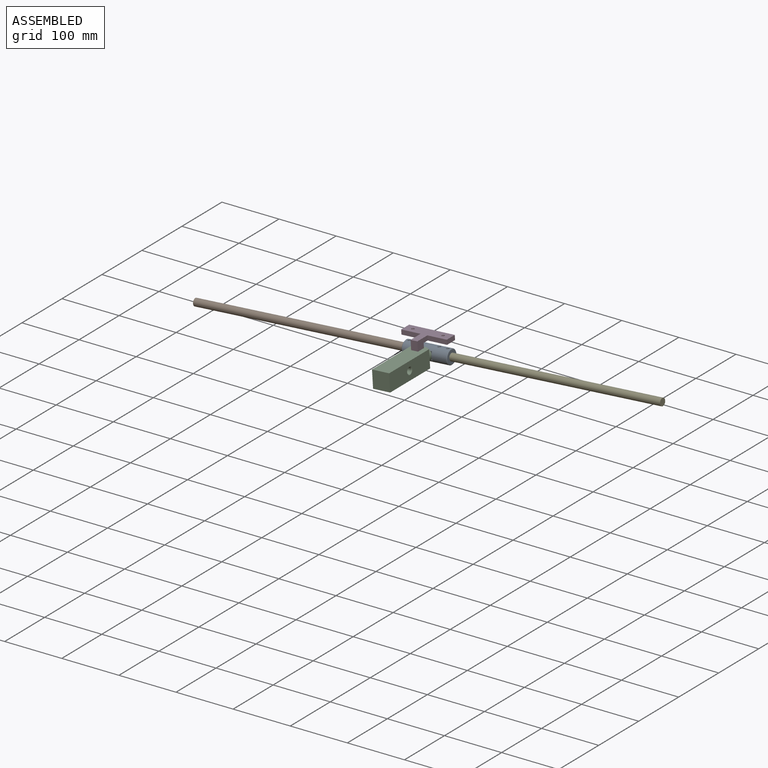
[diagram: assembled view]
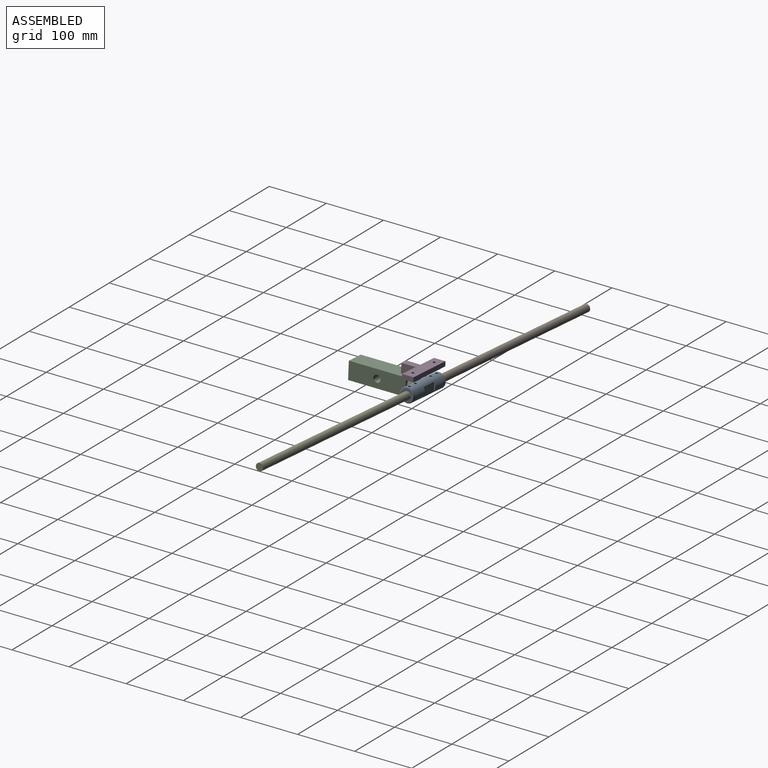
[diagram: assembled view, second angle]
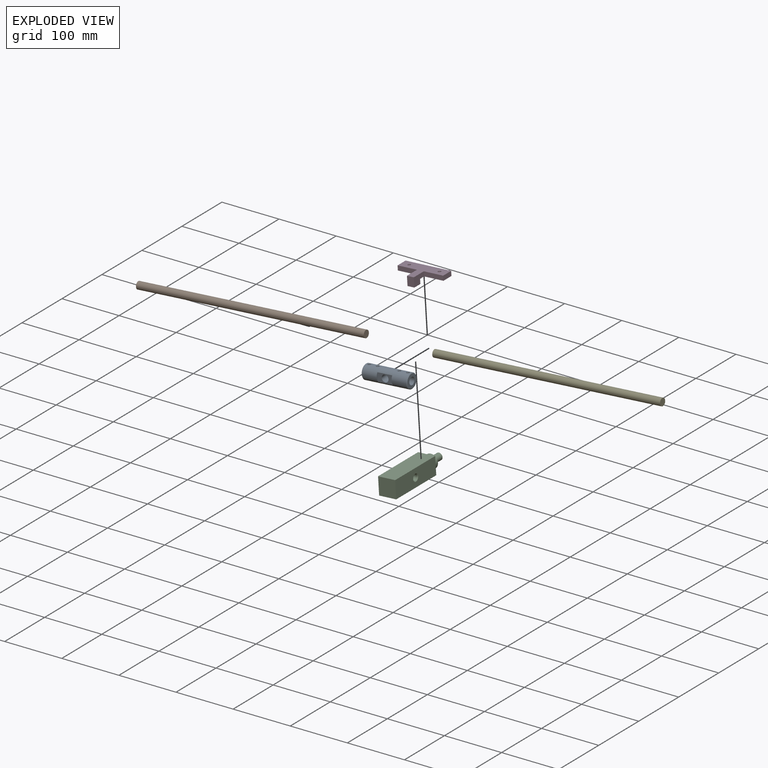
[diagram: exploded view]
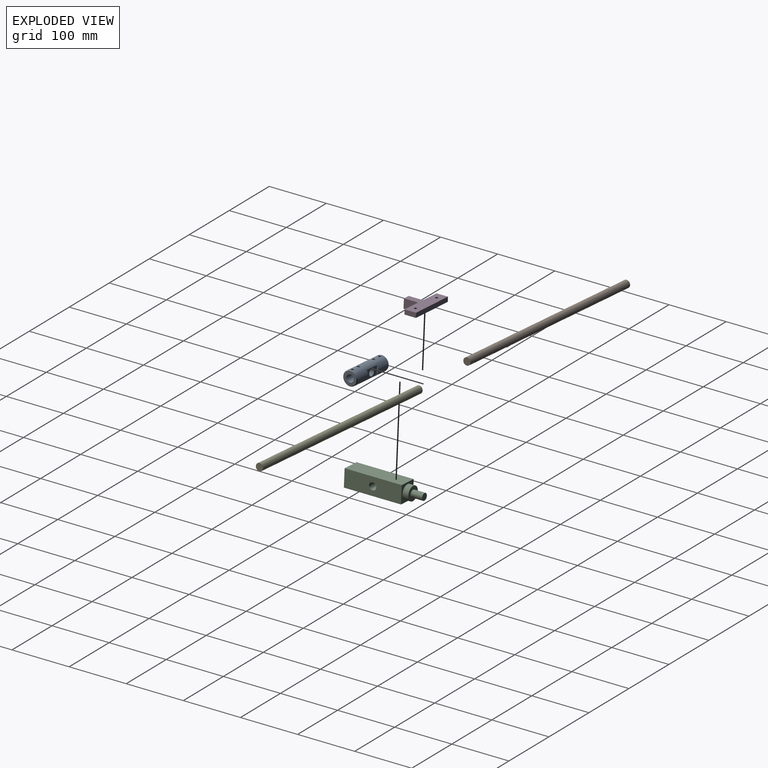
[diagram: exploded view, second angle]
ASSEMBLY  parts=5 mates=4
PART A: 24 faces, bbox 80x25x25 mm
  f0: cylinder r=12.5mm len=78mm, axis (-1,0,0), area 5170.1mm2, adj f7,f8,f9,f10,f11,f12,f14,f16
  f1: cylinder r=6.35mm len=30mm, axis (1,0,0), area 1156.9mm2, adj f3,f5,f19,f21
  f2: cylinder r=6.35mm len=30mm, axis (-1,0,0), area 1156.9mm2, adj f4,f6,f15,f17
  f3: plane 23x23mm, normal (1,0,0), area 288.8mm2, adj f1,f22
  f4: plane 23x23mm, normal (-1,0,0), area 288.8mm2, adj f2,f23
  f5: plane 12.7x12.7mm, normal (1,0,0), area 126.7mm2, adj f1
  f6: plane 12.7x12.7mm, normal (-1,0,0), area 126.7mm2, adj f2
  f7: plane 26x15mm, normal (0,-1,0), area 276.9mm2, adj f0,f8,f9,f13
  f8: plane 15x2.5mm, normal (1,0,0), area 25.5mm2, adj f0,f7
  f9: plane 15x2.5mm, normal (-1,0,0), area 25.5mm2, adj f0,f7
  f10: plane 15x2.5mm, normal (1,0,0), area 25.5mm2, adj f0,f11
  f11: plane 26x15mm, normal (0,1,0), area 276.9mm2, adj f0,f10,f12,f13
  f12: plane 15x2.5mm, normal (-1,0,0), area 25.5mm2, adj f0,f11
  f13: cylinder r=6mm len=20mm, axis (0,-1,0), area 754mm2, adj f7,f11
  f14: cone r=2.5mm half-angle=45deg, axis (0,0,1), area 14.2mm2, adj f0,f15
  f15: cylinder r=2.5mm len=5.91mm, axis (0,0,1), area 88.8mm2, adj f2,f14
  f16: cone r=2.5mm half-angle=45deg, axis (0,0,1), area 14.2mm2, adj f0,f17
  f17: cylinder r=2.5mm len=5.91mm, axis (0,0,1), area 88.8mm2, adj f2,f16
  f18: cone r=2.5mm half-angle=45deg, axis (0,0,1), area 14.2mm2, adj f0,f19
  f19: cylinder r=2.5mm len=5.91mm, axis (0,0,1), area 88.8mm2, adj f1,f18
  f20: cone r=2.5mm half-angle=45deg, axis (0,0,1), area 14.2mm2, adj f0,f21
  f21: cylinder r=2.5mm len=5.91mm, axis (0,0,1), area 88.8mm2, adj f1,f20
  f22: cone r=11.5mm half-angle=45deg, axis (-1,0,0), area 106.6mm2, adj f0,f3
  f23: cone r=12.5mm half-angle=45deg, axis (1,0,0), area 106.6mm2, adj f0,f4
PART B: 3 faces, bbox 400x12.7x12.7 mm
  f0: cylinder r=6.35mm len=400mm, axis (1,0,0), area 15959.3mm2, adj f1,f2
  f1: plane 12.7x12.7mm, normal (-1,0,0), area 126.7mm2, adj f0
  f2: plane 12.7x12.7mm, normal (1,0,0), area 126.7mm2, adj f0
PART C: 13 faces, bbox 30x130x30 mm
  f0: plane 24x24mm, normal (0,1,0), area 340.2mm2, adj f1,f3
  f1: cylinder r=5.98mm len=20mm, axis (0,-1,0), area 750.8mm2, adj f0,f2
  f2: plane 11.95x11.95mm, normal (0,1,0), area 112.2mm2, adj f1
  f3: cylinder r=12mm len=24mm, axis (0,1,0), area 754mm2, adj f0,f4
  f4: plane 30x30mm, normal (0,1,0), area 447.6mm2, adj f3,f6,f7,f8,f9
  f5: plane 30x30mm, normal (0,-1,0), area 900mm2, adj f6,f7,f8,f9
  f6: plane 100x30mm, normal (-1,0,0), area 3000mm2, adj f4,f5,f7,f9
  f7: plane 100x30mm, normal (0,0,1), area 3000mm2, adj f4,f5,f6,f8
  f8: plane 100x30mm, normal (1,0,0), area 2877.3mm2, adj f4,f5,f7,f9,f11
  f9: plane 100x30mm, normal (0,0,-1), area 3000mm2, adj f4,f5,f6,f8
  f10: cylinder r=5.15mm len=16.15mm, axis (1,0,0), area 522.6mm2, adj f11,f12
  f11: cone r=5.15mm half-angle=45deg, axis (1,0,0), area 55.7mm2, adj f8,f10
  f12: cone r=0mm half-angle=59deg, axis (1,0,0), area 97.2mm2, adj f10
PART D: 14 faces, bbox 80x45x16 mm
  f0: plane 80x30mm, normal (0,0,-1), area 1680.7mm2, adj f4,f5,f6,f7,f8,f9,f10,f11
  f1: plane 80x45mm, normal (0,0,1), area 1860.7mm2, adj f2,f5,f6,f7,f8,f9,f10,f11
  f2: plane 16x12mm, normal (0,-1,0), area 192mm2, adj f1,f3,f5,f6
  f3: plane 15x12mm, normal (0,0,-1), area 180mm2, adj f2,f4,f5,f6
  f4: plane 12x8mm, normal (0,1,0), area 96mm2, adj f0,f3,f5,f6
  f5: plane 25x16mm, normal (1,0,0), area 320mm2, adj f0,f1,f2,f3,f4,f7
  f6: plane 25x16mm, normal (-1,0,0), area 320mm2, adj f0,f1,f2,f3,f4,f8
  f7: plane 34x8mm, normal (0,-1,0), area 272mm2, adj f0,f1,f5,f10
  f8: plane 34x8mm, normal (0,-1,0), area 272mm2, adj f0,f1,f6,f11
  f9: plane 80x8mm, normal (0,1,0), area 640mm2, adj f0,f1,f10,f11
  f10: plane 20x8mm, normal (1,0,0), area 160mm2, adj f0,f1,f7,f9
  f11: plane 20x8mm, normal (-1,0,0), area 160mm2, adj f0,f1,f8,f9
  f12: cylinder r=2.5mm len=8mm, axis (0,0,1), area 125.7mm2, adj f0,f1
  f13: cylinder r=2.5mm len=8mm, axis (0,0,1), area 125.7mm2, adj f0,f1
PART E: 3 faces, bbox 400x12.7x12.7 mm
  f0: cylinder r=6.35mm len=400mm, axis (-1,0,0), area 15959.3mm2, adj f1,f2
  f1: plane 12.7x12.7mm, normal (1,0,0), area 126.7mm2, adj f0
  f2: plane 12.7x12.7mm, normal (-1,0,0), area 126.7mm2, adj f0
PLACE A rot(axis=(0,-1,0),4.2deg) t=(-25.3,11.8,-68.61)mm
PLACE B rot(axis=(0,-1,0),4.2deg) t=(-35.28,11.8,-69.35)mm
PLACE C rot(axis=(0,-1,0),3.6deg) t=(-25.3,1.8,-68.61)mm fixed
PLACE D rot(axis=(0,-1,0),3.6deg) t=(-25.3,1.8,-68.61)mm
PLACE E rot(axis=(0,-1,0),4.2deg) t=(-15.33,11.8,-67.88)mm
MATE fastened D.f3 <-> C.f7  axis (0.06,0,-1) through (-26.25,-8.2,-53.64)mm
MATE fastened A.f1 <-> B.f0  axis (-1,0,-0.07) through (-35.28,11.8,-69.35)mm
MATE revolute C.f1 <-> A.f13  axis (0,-1,0) through (-25.3,1.8,-68.61)mm
MATE fastened A.f1 <-> E.f0  axis (1,0,0.07) through (-15.33,11.8,-67.88)mm
